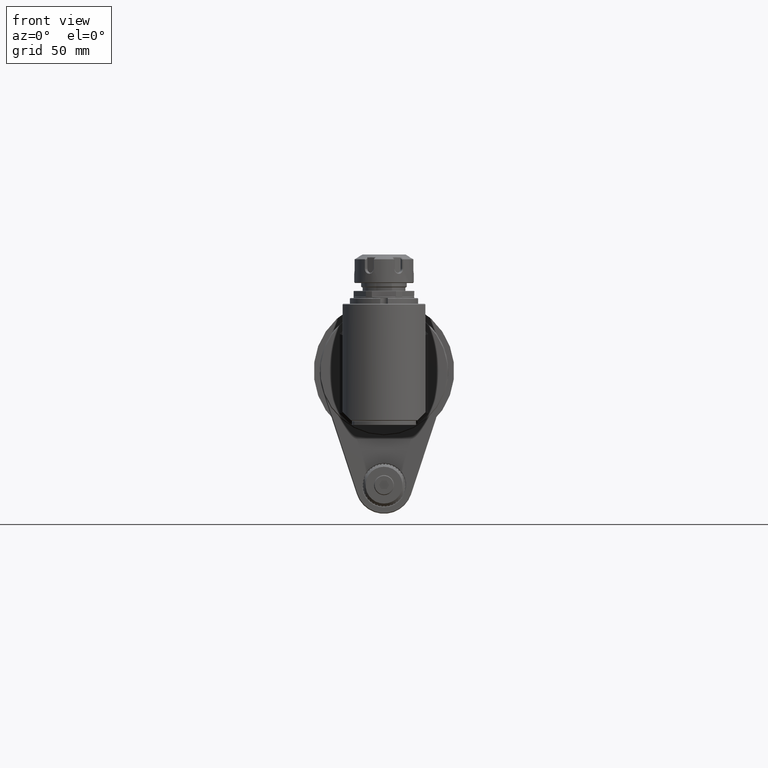
[diagram: clean part render]
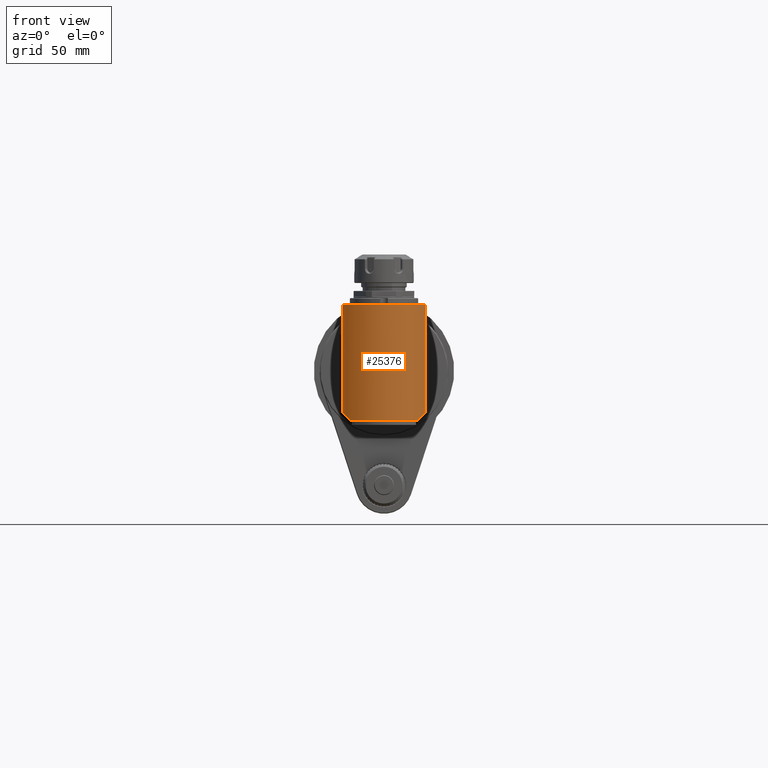
[diagram: same view with one face highlighted and labeled with its STEP entity id]
A machine part, front view. The second image highlights one B-rep face of the part: STEP entity #25376.
In plain terms, the highlighted cylindrical surface (partial cylindrical patch) has radius 32 mm, axis along (-0, -0, -1).
Its self-contained STEP definition (entity closure, byte-faithful):
#895=ELLIPSE('',#27321,45.254833995939,32.);
#898=ELLIPSE('',#27617,45.254833995939,32.);
#1626=CIRCLE('',#27616,32.);
#1627=CIRCLE('',#27618,32.);
#2597=CYLINDRICAL_SURFACE('',#27615,32.);
#3402=FACE_OUTER_BOUND('',#4996,.T.);
#4996=EDGE_LOOP('',(#20127,#20128,#20129,#20130,#20131,#20132));
#7018=LINE('',#42428,#9109);
#7019=LINE('',#42433,#9110);
#9109=VECTOR('',#32598,75.49999700614);
#9110=VECTOR('',#32603,75.50000268423);
#11202=VERTEX_POINT('',#40799);
#11203=VERTEX_POINT('',#40801);
#11419=VERTEX_POINT('',#42408);
#11422=VERTEX_POINT('',#42430);
#11423=VERTEX_POINT('',#42432);
#11424=VERTEX_POINT('',#42434);
#14199=EDGE_CURVE('',#11202,#11203,#895,.T.);
#14544=EDGE_CURVE('',#11419,#11202,#7018,.T.);
#14545=EDGE_CURVE('',#11419,#11422,#1626,.T.);
#14546=EDGE_CURVE('',#11422,#11423,#7019,.T.);
#14547=EDGE_CURVE('',#11424,#11423,#898,.T.);
#14548=EDGE_CURVE('',#11203,#11424,#1627,.T.);
#20127=ORIENTED_EDGE('',*,*,#14545,.T.);
#20128=ORIENTED_EDGE('',*,*,#14546,.T.);
#20129=ORIENTED_EDGE('',*,*,#14547,.F.);
#20130=ORIENTED_EDGE('',*,*,#14548,.F.);
#20131=ORIENTED_EDGE('',*,*,#14199,.F.);
#20132=ORIENTED_EDGE('',*,*,#14544,.F.);
#25376=ADVANCED_FACE('',(#3402),#2597,.T.);
#27321=AXIS2_PLACEMENT_3D('',#40802,#31853,#31854);
#27615=AXIS2_PLACEMENT_3D('',#42429,#32599,#32600);
#27616=AXIS2_PLACEMENT_3D('',#42431,#32601,#32602);
#27617=AXIS2_PLACEMENT_3D('',#42435,#32604,#32605);
#27618=AXIS2_PLACEMENT_3D('',#42436,#32606,#32607);
#31853=DIRECTION('center_axis',(0.707106781186548,0.,-0.707106781186548));
#31854=DIRECTION('ref_axis',(-0.707106781186547,0.,-0.707106781186547));
#32598=DIRECTION('',(5.526648485481E-9,2.343369960171E-8,-1.));
#32599=DIRECTION('center_axis',(0.,0.,-1.));
#32600=DIRECTION('ref_axis',(-1.,0.,0.));
#32601=DIRECTION('center_axis',(0.,0.,-1.));
#32602=DIRECTION('ref_axis',(-1.,0.,0.));
#32603=DIRECTION('',(-2.866110936376E-8,-5.50898463684E-9,-1.));
#32604=DIRECTION('center_axis',(-0.707106781186548,0.,-0.707106781186548));
#32605=DIRECTION('ref_axis',(-0.707106781186547,0.,0.707106781186547));
#32606=DIRECTION('center_axis',(0.,0.,-1.));
#32607=DIRECTION('ref_axis',(0.73437500000001,-0.67874395715541,0.));
#40799=CARTESIAN_POINT('',(29.,-280.5277492585,-29.));
#40801=CARTESIAN_POINT('',(23.5,-288.719806629,-34.5));
#40802=CARTESIAN_POINT('Origin',(0.,-267.,-58.));
#42408=CARTESIAN_POINT('',(29.0000012601227,-280.527740953919,46.4999956239893));
#42428=CARTESIAN_POINT('',(28.99999958274,-280.5277510277,46.49999700614));
#42429=CARTESIAN_POINT('Origin',(0.,-267.,-35.));
#42430=CARTESIAN_POINT('',(-28.9999983202336,-280.527749068327,46.4999999256929));
#42431=CARTESIAN_POINT('Origin',(0.,-267.,46.4999944081107));
#42432=CARTESIAN_POINT('',(-29.,-280.5277492585,-29.));
#42433=CARTESIAN_POINT('',(-28.99999783609,-280.5277488425,46.50000268423));
#42434=CARTESIAN_POINT('',(-23.5,-288.719806629,-34.5));
#42435=CARTESIAN_POINT('Origin',(0.,-267.,-58.));
#42436=CARTESIAN_POINT('Origin',(0.,-267.,-34.5));